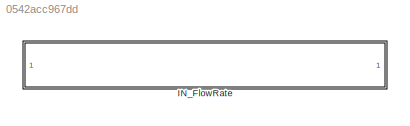
MODEL slx_0542acc967dd
KIND library
CONFIG AbsTol = auto
CONFIG EnableMultiTasking = off
CONFIG FixedStep = auto
CONFIG MaxStep = auto
CONFIG MinStep = auto
CONFIG RelTol = 1e-3
CONFIG SampleTimeConstraint = Unconstrained
CONFIG SolverName = VariableStepAuto
CONFIG StartTime = 0.0
CONFIG StopTime = 10.0
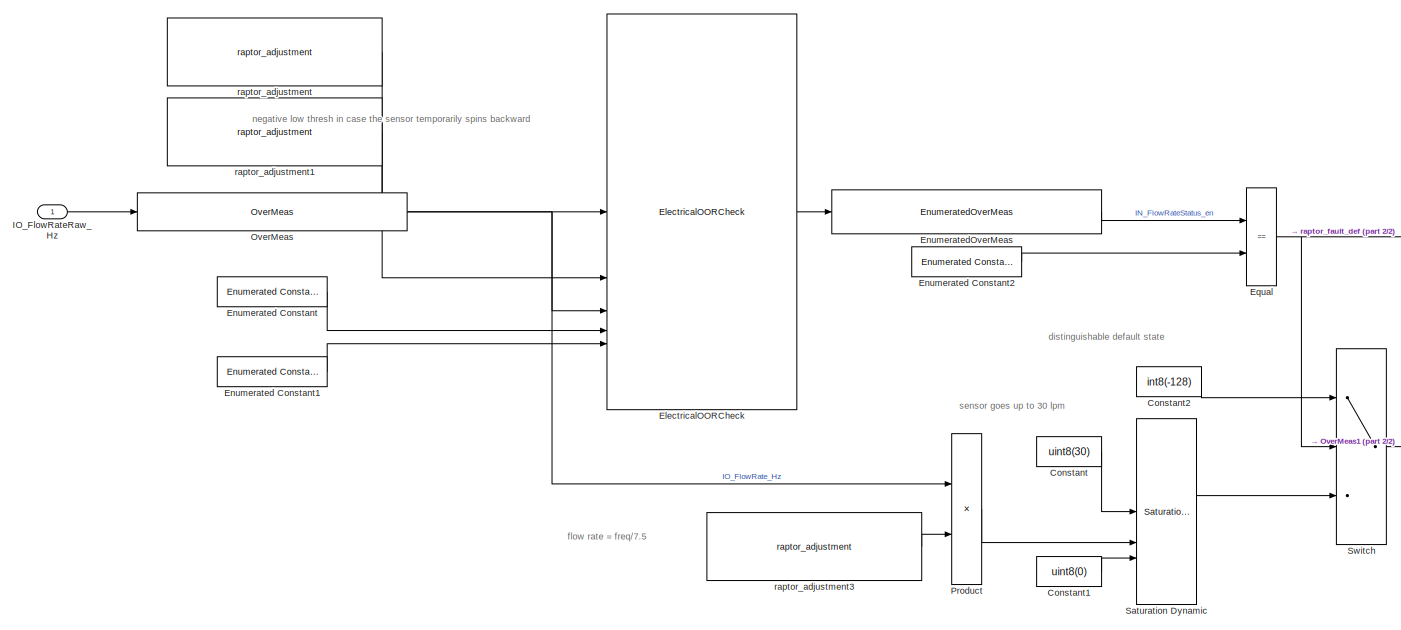
[diagram: IN_FlowRate - part 1/2, most of the canvas]
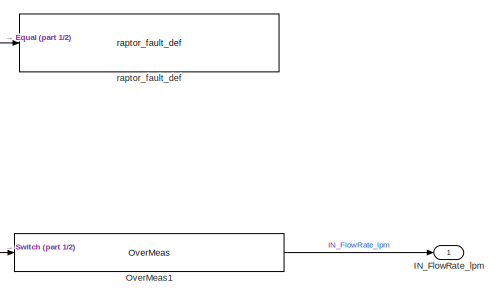
[diagram: IN_FlowRate - part 2/2, middle right region]
BLOCK [SubSystem] IN_FlowRate
BLOCK [Constant] IN_FlowRate/Constant
  Value = uint8(30)
BLOCK [Constant] IN_FlowRate/Constant1
  Value = uint8(0)
BLOCK [Constant] IN_FlowRate/Constant2
  Value = int8(-128)
BLOCK [Reference] IN_FlowRate/ElectricalOORCheck  REF=Utilities/ElectricalOORCheck
  SourceBlock = Utilities/ElectricalOORCheck
BLOCK [Reference] IN_FlowRate/Enumerated Constant  REF=simulink/Sources/Enumerated
Constant
  SourceBlock = simulink/Sources/Enumerated\nConstant
  SourceType = Enumerated Constant
BLOCK [Reference] IN_FlowRate/Enumerated Constant1  REF=simulink/Sources/Enumerated
Constant
  SourceBlock = simulink/Sources/Enumerated\nConstant
  SourceType = Enumerated Constant
BLOCK [Reference] IN_FlowRate/Enumerated Constant2  REF=simulink/Sources/Enumerated
Constant
  SourceBlock = simulink/Sources/Enumerated\nConstant
  SourceType = Enumerated Constant
BLOCK [Reference] IN_FlowRate/EnumeratedOverMeas  REF=Utilities/EnumeratedOverMeas
  SourceBlock = Utilities/EnumeratedOverMeas
BLOCK [RelationalOperator] IN_FlowRate/Equal
  InputSameDT = off
  Operator = ==
  OutDataTypeStr = boolean
  RndMeth = Simplest
BLOCK [Outport] IN_FlowRate/IN_FlowRate_lpm
BLOCK [Inport] IN_FlowRate/IO_FlowRateRaw_Hz
BLOCK [Reference] IN_FlowRate/OverMeas  REF=Utilities/OverMeas
  SourceBlock = Utilities/OverMeas
BLOCK [Reference] IN_FlowRate/OverMeas1  REF=Utilities/OverMeas
  SourceBlock = Utilities/OverMeas
BLOCK [Product] IN_FlowRate/Product
BLOCK [Reference] IN_FlowRate/Saturation Dynamic  REF=simulink/Discontinuities/Saturation
Dynamic
  SourceBlock = simulink/Discontinuities/Saturation\nDynamic
  SourceType = Saturation Dynamic
BLOCK [Switch] IN_FlowRate/Switch
  Criteria = u2 ~= 0
  InputSameDT = off
  SaturateOnIntegerOverflow = off
BLOCK [Reference] IN_FlowRate/raptor_adjustment  REF=Raptor_lib/Data Storage/raptor_adjustment
  SourceBlock = Raptor_lib/Data Storage/raptor_adjustment
  SourceProductName = Raptor
  SourceType = Adjustment
BLOCK [Reference] IN_FlowRate/raptor_adjustment1  REF=Raptor_lib/Data Storage/raptor_adjustment
  SourceBlock = Raptor_lib/Data Storage/raptor_adjustment
  SourceProductName = Raptor
  SourceType = Adjustment
BLOCK [Reference] IN_FlowRate/raptor_adjustment3  REF=Raptor_lib/Data Storage/raptor_adjustment
  SourceBlock = Raptor_lib/Data Storage/raptor_adjustment
  SourceProductName = Raptor
  SourceType = Adjustment
BLOCK [Reference] IN_FlowRate/raptor_fault_def  REF=Raptor_lib/Faults/raptor_fault_def
  SourceBlock = Raptor_lib/Faults/raptor_fault_def
  SourceProductName = Raptor
  SourceType = Fault Definition
ANNOTATION IN_FlowRate: distinguishable default state
ANNOTATION IN_FlowRate: flow rate = freq/7.5
ANNOTATION IN_FlowRate: negative low thresh in case the sensor temporarily spins backward
ANNOTATION IN_FlowRate: sensor goes up to 30 lpm
LINE IN_FlowRate/Constant1:1 -> IN_FlowRate/Saturation Dynamic:3
LINE IN_FlowRate/Constant2:1 -> IN_FlowRate/Switch:1
LINE IN_FlowRate/Constant:1 -> IN_FlowRate/Saturation Dynamic:1
LINE IN_FlowRate/ElectricalOORCheck:1 -> IN_FlowRate/EnumeratedOverMeas:1
LINE IN_FlowRate/Enumerated Constant1:1 -> IN_FlowRate/ElectricalOORCheck:5
LINE IN_FlowRate/Enumerated Constant2:1 -> IN_FlowRate/Equal:2
LINE IN_FlowRate/Enumerated Constant:1 -> IN_FlowRate/ElectricalOORCheck:4
LINE IN_FlowRate/EnumeratedOverMeas:1 -> IN_FlowRate/Equal:1
NET IN_FlowRate/Equal:1 -> IN_FlowRate/Switch:2, IN_FlowRate/raptor_fault_def:1
LINE IN_FlowRate/IO_FlowRateRaw_Hz:1 -> IN_FlowRate/OverMeas:1
LINE IN_FlowRate/OverMeas1:1 -> IN_FlowRate/IN_FlowRate_lpm:1
NET IN_FlowRate/OverMeas:1 -> IN_FlowRate/ElectricalOORCheck:3, IN_FlowRate/Product:1
LINE IN_FlowRate/Product:1 -> IN_FlowRate/Saturation Dynamic:2
LINE IN_FlowRate/Saturation Dynamic:1 -> IN_FlowRate/Switch:3
LINE IN_FlowRate/Switch:1 -> IN_FlowRate/OverMeas1:1
LINE IN_FlowRate/raptor_adjustment1:1 -> IN_FlowRate/ElectricalOORCheck:2
LINE IN_FlowRate/raptor_adjustment3:1 -> IN_FlowRate/Product:2
LINE IN_FlowRate/raptor_adjustment:1 -> IN_FlowRate/ElectricalOORCheck:1
note: NET lines group one-source signal fan-out (src -> all destinations, sorted); 1:1 wires keep LINE
